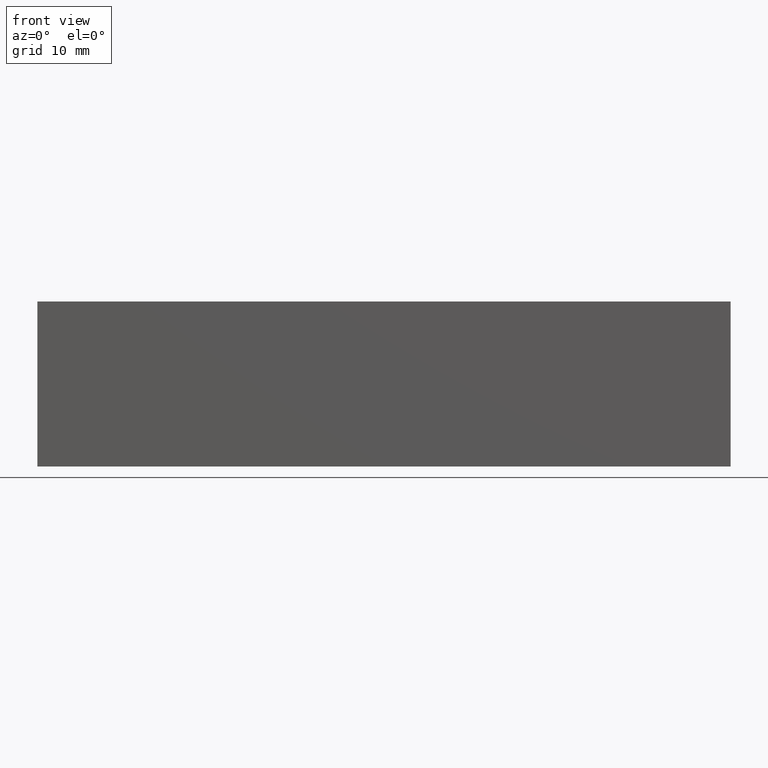
[diagram: clean part render]
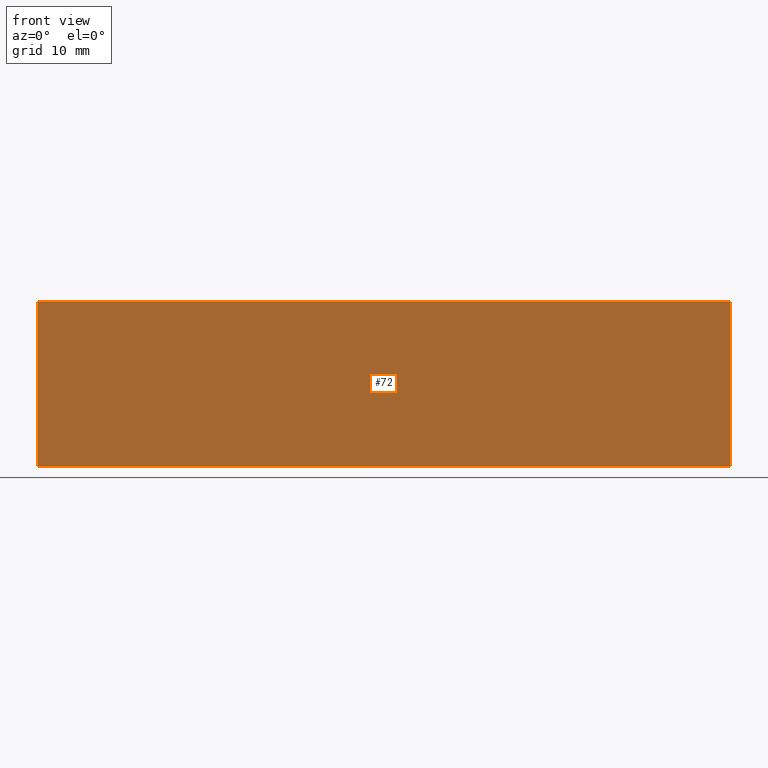
[diagram: same view with one face highlighted and labeled with its STEP entity id]
A machine part, front view. The second image highlights one B-rep face of the part: STEP entity #72.
In plain terms, the highlighted planar face has unit normal (0, 1, -0).
Its self-contained STEP definition (entity closure, byte-faithful):
#10 = CARTESIAN_POINT ( 'NONE',  ( 77.28703400351744790, 99.84420763766895845, 20.00000000000000000 ) ) ;
#11 = CARTESIAN_POINT ( 'NONE',  ( 161.2870676035176416, 99.84420763766894424, 20.00000000000000000 ) ) ;
#12 = EDGE_CURVE ( 'NONE', #63, #23, #118, .T. ) ;
#19 = DIRECTION ( 'NONE',  ( 1.000000000000000000, -1.652116935321609837E-16, 0.000000000000000000 ) ) ;
#23 = VERTEX_POINT ( 'NONE', #136 ) ;
#25 = PLANE ( 'NONE',  #31 ) ;
#31 = AXIS2_PLACEMENT_3D ( 'NONE', #225, #61, #208 ) ;
#40 = DIRECTION ( 'NONE',  ( -0.000000000000000000, -0.000000000000000000, -1.000000000000000000 ) ) ;
#44 = ORIENTED_EDGE ( 'NONE', *, *, #12, .F. ) ;
#54 = ORIENTED_EDGE ( 'NONE', *, *, #224, .F. ) ;
#59 = EDGE_LOOP ( 'NONE', ( #80, #44, #54, #205 ) ) ;
#61 = DIRECTION ( 'NONE',  ( 1.652116935321609837E-16, 1.000000000000000000, -0.000000000000000000 ) ) ;
#63 = VERTEX_POINT ( 'NONE', #190 ) ;
#72 = ADVANCED_FACE ( 'NONE', ( #82 ), #25, .F. ) ;
#75 = VECTOR ( 'NONE', #87, 1000.000000000000000 ) ;
#80 = ORIENTED_EDGE ( 'NONE', *, *, #104, .T. ) ;
#82 = FACE_OUTER_BOUND ( 'NONE', #59, .T. ) ;
#83 = LINE ( 'NONE', #131, #116 ) ;
#87 = DIRECTION ( 'NONE',  ( -0.000000000000000000, -0.000000000000000000, -1.000000000000000000 ) ) ;
#88 = CARTESIAN_POINT ( 'NONE',  ( 77.28703400351744790, 99.84420763766895845, 0.000000000000000000 ) ) ;
#99 = CARTESIAN_POINT ( 'NONE',  ( 77.28703400351744790, 99.84420763766895845, 0.000000000000000000 ) ) ;
#104 = EDGE_CURVE ( 'NONE', #152, #23, #232, .T. ) ;
#106 = DIRECTION ( 'NONE',  ( 1.000000000000000000, -1.652116935321609837E-16, 0.000000000000000000 ) ) ;
#116 = VECTOR ( 'NONE', #40, 1000.000000000000000 ) ;
#118 = LINE ( 'NONE', #11, #75 ) ;
#128 = LINE ( 'NONE', #189, #212 ) ;
#131 = CARTESIAN_POINT ( 'NONE',  ( 77.28703400351744790, 99.84420763766895845, 20.00000000000000000 ) ) ;
#136 = CARTESIAN_POINT ( 'NONE',  ( 161.2870676035176416, 99.84420763766894424, 0.000000000000000000 ) ) ;
#142 = EDGE_CURVE ( 'NONE', #165, #152, #83, .T. ) ;
#152 = VERTEX_POINT ( 'NONE', #99 ) ;
#165 = VERTEX_POINT ( 'NONE', #10 ) ;
#189 = CARTESIAN_POINT ( 'NONE',  ( 77.28703400351744790, 99.84420763766895845, 20.00000000000000000 ) ) ;
#190 = CARTESIAN_POINT ( 'NONE',  ( 161.2870676035176416, 99.84420763766894424, 20.00000000000000000 ) ) ;
#197 = VECTOR ( 'NONE', #106, 1000.000000000000000 ) ;
#205 = ORIENTED_EDGE ( 'NONE', *, *, #142, .T. ) ;
#208 = DIRECTION ( 'NONE',  ( -1.000000000000000000, 1.652116935321609837E-16, 0.000000000000000000 ) ) ;
#212 = VECTOR ( 'NONE', #19, 1000.000000000000000 ) ;
#224 = EDGE_CURVE ( 'NONE', #165, #63, #128, .T. ) ;
#225 = CARTESIAN_POINT ( 'NONE',  ( 77.28703400351744790, 99.84420763766895845, 20.00000000000000000 ) ) ;
#232 = LINE ( 'NONE', #88, #197 ) ;